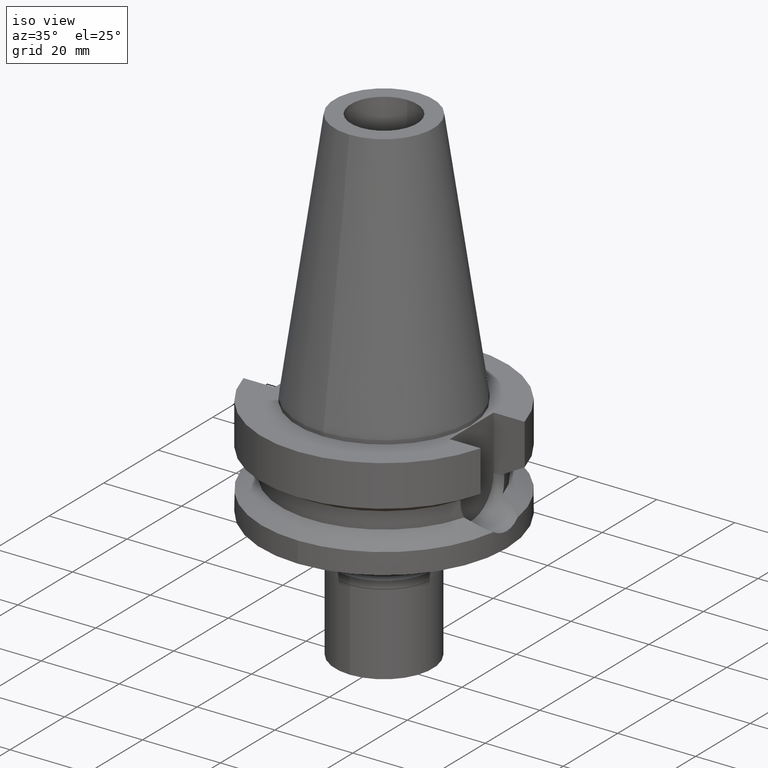
[diagram: clean part render]
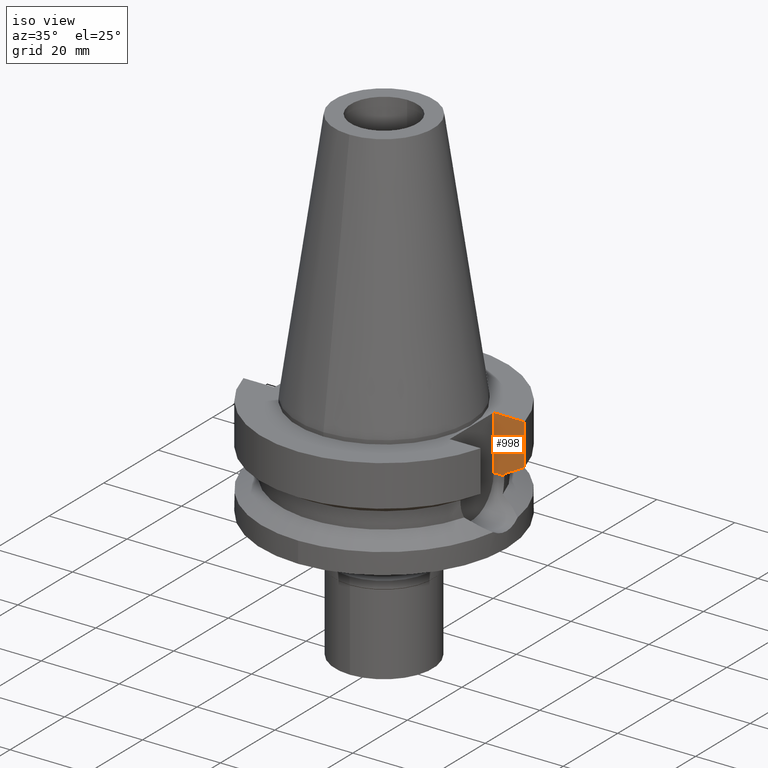
[diagram: same view with one face highlighted and labeled with its STEP entity id]
A machine part, iso view. The second image highlights one B-rep face of the part: STEP entity #998.
In plain terms, the highlighted planar face has unit normal (0, 1, 0).
Its self-contained STEP definition (entity closure, byte-faithful):
#34 = ORIENTED_EDGE ( 'NONE', *, *, #2726, .T. ) ;
#40 = CARTESIAN_POINT ( 'NONE',  ( 30.45402272279000044, 8.050000000000000711, -1.000000000000000000 ) ) ;
#299 = CARTESIAN_POINT ( 'NONE',  ( 25.24772266958000344, 8.050000000000000711, -14.94999999999999929 ) ) ;
#313 = CARTESIAN_POINT ( 'NONE',  ( 22.50000000000000000, 8.050000000000000711, -14.94999999999999929 ) ) ;
#315 = EDGE_CURVE ( 'NONE', #2993, #3006, #2649, .T. ) ;
#324 = DIRECTION ( 'NONE',  ( 1.000000000000000000, -1.292966614911000084E-14, 3.297064868023000075E-14 ) ) ;
#416 = DIRECTION ( 'NONE',  ( 1.000000000000000000, 0.0000000000000000000, 0.0000000000000000000 ) ) ;
#443 = ORIENTED_EDGE ( 'NONE', *, *, #3020, .T. ) ;
#529 = DIRECTION ( 'NONE',  ( -1.862587668604989632E-08, 7.046394739836962169E-08, 0.9999999999999972244 ) ) ;
#532 = DIRECTION ( 'NONE',  ( 2.974520433535880442E-06, -9.329182022153622745E-06, 0.9999999999520592375 ) ) ;
#596 = VERTEX_POINT ( 'NONE', #2239 ) ;
#712 = CARTESIAN_POINT ( 'NONE',  ( 22.50000000000000000, 8.050000000000000711, -1.000000000000000000 ) ) ;
#833 = VERTEX_POINT ( 'NONE', #2337 ) ;
#883 = DIRECTION ( 'NONE',  ( 0.0000000000000000000, 0.0000000000000000000, -1.000000000000000000 ) ) ;
#894 = AXIS2_PLACEMENT_3D ( 'NONE', #2752, #2214, #416 ) ;
#940 = CARTESIAN_POINT ( 'NONE',  ( 22.50000000000000000, 8.050000000000000711, -14.94999999999999929 ) ) ;
#998 = ADVANCED_FACE ( 'NONE', ( #2981 ), #1294, .F. ) ;
#1057 = ORIENTED_EDGE ( 'NONE', *, *, #315, .T. ) ;
#1081 = VERTEX_POINT ( 'NONE', #1769 ) ;
#1153 = LINE ( 'NONE', #2354, #1858 ) ;
#1198 = CARTESIAN_POINT ( 'NONE',  ( 30.45402291957999807, 8.049999255512000573, -11.56551235811000033 ) ) ;
#1208 = DIRECTION ( 'NONE',  ( 1.000000000000000000, -3.506251283225999947E-14, 0.0000000000000000000 ) ) ;
#1294 = PLANE ( 'NONE',  #894 ) ;
#1411 = ORIENTED_EDGE ( 'NONE', *, *, #1482, .F. ) ;
#1465 = CARTESIAN_POINT ( 'NONE',  ( 30.45402291957999807, 8.049999255512000573, -11.56551235811000033 ) ) ;
#1467 = VECTOR ( 'NONE', #883, 1000.000000000000000 ) ;
#1482 = EDGE_CURVE ( 'NONE', #1081, #3006, #1153, .T. ) ;
#1494 = LINE ( 'NONE', #313, #2739 ) ;
#1650 = EDGE_CURVE ( 'NONE', #2358, #596, #1494, .T. ) ;
#1699 = CARTESIAN_POINT ( 'NONE',  ( 30.45402291957999807, 8.049999255512000573, -11.56551235811000033 ) ) ;
#1749 = VECTOR ( 'NONE', #529, 1000.000000000000114 ) ;
#1769 = CARTESIAN_POINT ( 'NONE',  ( 22.50000000000000000, 8.050000000000000711, -1.000000000000000000 ) ) ;
#1828 = ORIENTED_EDGE ( 'NONE', *, *, #1650, .T. ) ;
#1858 = VECTOR ( 'NONE', #1208, 1000.000000000000000 ) ;
#1970 = CARTESIAN_POINT ( 'NONE',  ( 26.83754551695503565, 8.049990703305777373, -13.57774925488145001 ) ) ;
#2001 = VECTOR ( 'NONE', #532, 1000.000000000000227 ) ;
#2026 = B_SPLINE_CURVE_WITH_KNOTS ( 'NONE', 3,
 ( #1465, #2179, #1970, #2389 ),
 .UNSPECIFIED., .F., .F.,
 ( 4, 4 ),
 ( 0.0000000000000000000, 1.000000000000000000 ),
 .UNSPECIFIED. ) ;
#2121 = EDGE_CURVE ( 'NONE', #2993, #833, #2026, .T. ) ;
#2179 = CARTESIAN_POINT ( 'NONE',  ( 28.57292267021355059, 8.049998511996070860, -12.61549640833798236 ) ) ;
#2214 = DIRECTION ( 'NONE',  ( -0.0000000000000000000, 1.000000000000000000, 0.0000000000000000000 ) ) ;
#2239 = CARTESIAN_POINT ( 'NONE',  ( 25.24772266958000344, 8.050000000000000711, -14.94999999999999929 ) ) ;
#2337 = CARTESIAN_POINT ( 'NONE',  ( 25.24772415001999804, 8.049995356795999868, -14.45229247877999867 ) ) ;
#2354 = CARTESIAN_POINT ( 'NONE',  ( 22.50000000000000000, 8.050000000000000711, -1.000000000000000000 ) ) ;
#2358 = VERTEX_POINT ( 'NONE', #940 ) ;
#2381 = LINE ( 'NONE', #299, #2001 ) ;
#2389 = CARTESIAN_POINT ( 'NONE',  ( 25.24772415001999804, 8.049995356795999868, -14.45229247877999867 ) ) ;
#2635 = EDGE_LOOP ( 'NONE', ( #2939, #1057, #1411, #34, #1828, #443 ) ) ;
#2649 = LINE ( 'NONE', #1699, #1749 ) ;
#2726 = EDGE_CURVE ( 'NONE', #1081, #2358, #2969, .T. ) ;
#2739 = VECTOR ( 'NONE', #324, 1000.000000000000000 ) ;
#2752 = CARTESIAN_POINT ( 'NONE',  ( 31.50000000000000000, 8.050000000000000711, -14.94999999999999929 ) ) ;
#2939 = ORIENTED_EDGE ( 'NONE', *, *, #2121, .F. ) ;
#2969 = LINE ( 'NONE', #712, #1467 ) ;
#2981 = FACE_OUTER_BOUND ( 'NONE', #2635, .T. ) ;
#2993 = VERTEX_POINT ( 'NONE', #1198 ) ;
#3006 = VERTEX_POINT ( 'NONE', #40 ) ;
#3020 = EDGE_CURVE ( 'NONE', #596, #833, #2381, .T. ) ;